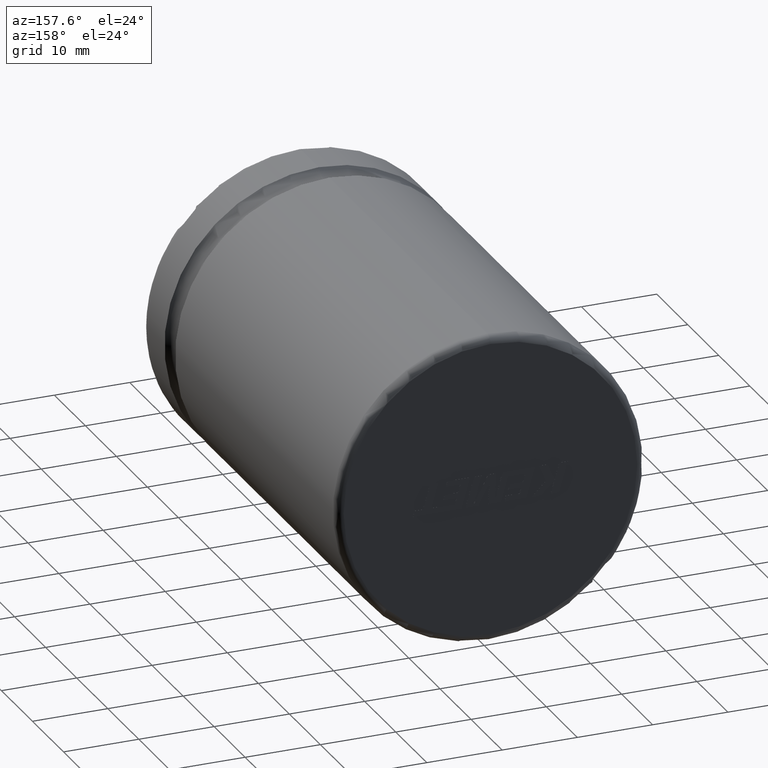
[diagram: clean part render]
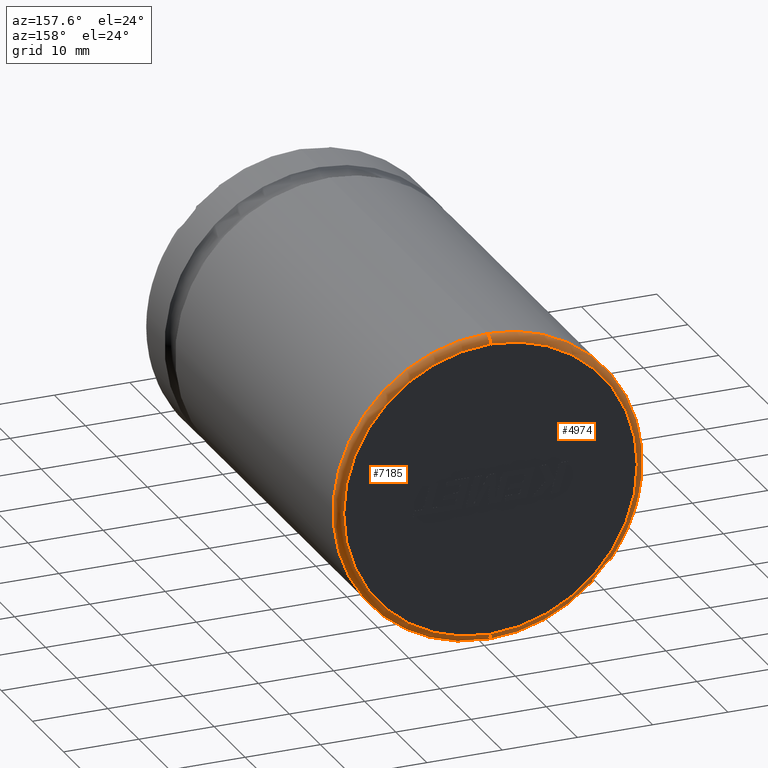
[diagram: same view with one multi-face feature highlighted, each face labeled with its STEP entity id]
A machine part, auxiliary view. The highlighted faces form ONE feature: a constant-radius fillet chain: 2 tangent blend faces with common blend radius 1 mm. The faces share edges in the B-rep.
Their STEP definitions:
[1] entity #7185 (Torus):
#247 = TOROIDAL_SURFACE ( 'NONE', #10399, 19.50000000000000000, 1.000000000000000000 ) ;
#1538 = DIRECTION ( 'NONE',  ( 0.0000000000000000000, 1.000000000000000000, 0.0000000000000000000 ) ) ;
#1597 = EDGE_CURVE ( 'NONE', #4357, #1992, #13575, .T. ) ;
#1992 = VERTEX_POINT ( 'NONE', #5085 ) ;
#2204 = VERTEX_POINT ( 'NONE', #13724 ) ;
#2429 = CARTESIAN_POINT ( 'NONE',  ( 0.0000000000000000000, 61.00000000000000000, 19.50000000000000000 ) ) ;
#2541 = DIRECTION ( 'NONE',  ( 1.224646799147353500E-016, 0.0000000000000000000, -1.000000000000000000 ) ) ;
#2787 = AXIS2_PLACEMENT_3D ( 'NONE', #5289, #10822, #11926 ) ;
#2879 = CARTESIAN_POINT ( 'NONE',  ( 2.449293598294706500E-015, 62.00000000000000000, -19.50000000000000000 ) ) ;
#3185 = ORIENTED_EDGE ( 'NONE', *, *, #8455, .F. ) ;
#3521 = DIRECTION ( 'NONE',  ( 0.0000000000000000000, 0.0000000000000000000, 1.000000000000000000 ) ) ;
#3581 = DIRECTION ( 'NONE',  ( 0.0000000000000000000, 0.0000000000000000000, 1.000000000000000000 ) ) ;
#4288 = DIRECTION ( 'NONE',  ( 0.0000000000000000000, 0.0000000000000000000, 1.000000000000000000 ) ) ;
#4357 = VERTEX_POINT ( 'NONE', #4874 ) ;
#4546 = AXIS2_PLACEMENT_3D ( 'NONE', #2429, #4553, #3521 ) ;
#4553 = DIRECTION ( 'NONE',  ( -1.000000000000000000, 0.0000000000000000000, 0.0000000000000000000 ) ) ;
#4874 = CARTESIAN_POINT ( 'NONE',  ( 0.0000000000000000000, 61.00000000000000000, -20.50000000000000000 ) ) ;
#5056 = VERTEX_POINT ( 'NONE', #2879 ) ;
#5085 = CARTESIAN_POINT ( 'NONE',  ( 2.510525938252074500E-015, 61.00000000000000000, 20.50000000000000000 ) ) ;
#5289 = CARTESIAN_POINT ( 'NONE',  ( 0.0000000000000000000, 61.00000000000000000, 0.0000000000000000000 ) ) ;
#5314 = ORIENTED_EDGE ( 'NONE', *, *, #12846, .F. ) ;
#5315 = AXIS2_PLACEMENT_3D ( 'NONE', #10138, #1538, #3581 ) ;
#6565 = CIRCLE ( 'NONE', #4546, 1.000000000000000900 ) ;
#7185 = ADVANCED_FACE ( 'NONE', ( #12761 ), #247, .T. ) ;
#7407 = EDGE_CURVE ( 'NONE', #4357, #5056, #11973, .T. ) ;
#7612 = ORIENTED_EDGE ( 'NONE', *, *, #7407, .T. ) ;
#7753 = AXIS2_PLACEMENT_3D ( 'NONE', #11257, #9149, #2541 ) ;
#7871 = CIRCLE ( 'NONE', #5315, 19.50000000000000000 ) ;
#8455 = EDGE_CURVE ( 'NONE', #1992, #2204, #6565, .T. ) ;
#8633 = DIRECTION ( 'NONE',  ( 0.0000000000000000000, 1.000000000000000000, 0.0000000000000000000 ) ) ;
#9149 = DIRECTION ( 'NONE',  ( 1.000000000000000000, -0.0000000000000000000, 1.224646799147353200E-016 ) ) ;
#9607 = ORIENTED_EDGE ( 'NONE', *, *, #1597, .F. ) ;
#10138 = CARTESIAN_POINT ( 'NONE',  ( 0.0000000000000000000, 62.00000000000000000, 0.0000000000000000000 ) ) ;
#10399 = AXIS2_PLACEMENT_3D ( 'NONE', #11826, #8633, #4288 ) ;
#10822 = DIRECTION ( 'NONE',  ( -0.0000000000000000000, -1.000000000000000000, -0.0000000000000000000 ) ) ;
#11257 = CARTESIAN_POINT ( 'NONE',  ( 2.388061258337338900E-015, 61.00000000000000000, -19.50000000000000000 ) ) ;
#11826 = CARTESIAN_POINT ( 'NONE',  ( 0.0000000000000000000, 61.00000000000000000, 0.0000000000000000000 ) ) ;
#11926 = DIRECTION ( 'NONE',  ( 0.0000000000000000000, 0.0000000000000000000, 1.000000000000000000 ) ) ;
#11973 = CIRCLE ( 'NONE', #7753, 1.000000000000000900 ) ;
#11979 = EDGE_LOOP ( 'NONE', ( #9607, #7612, #5314, #3185 ) ) ;
#12761 = FACE_OUTER_BOUND ( 'NONE', #11979, .T. ) ;
#12846 = EDGE_CURVE ( 'NONE', #2204, #5056, #7871, .T. ) ;
#13575 = CIRCLE ( 'NONE', #2787, 20.50000000000000000 ) ;
#13724 = CARTESIAN_POINT ( 'NONE',  ( 0.0000000000000000000, 62.00000000000000000, 19.50000000000000000 ) ) ;
[2] entity #4974 (Torus):
#79 = EDGE_LOOP ( 'NONE', ( #6897, #967, #10096, #1532 ) ) ;
#967 = ORIENTED_EDGE ( 'NONE', *, *, #8972, .F. ) ;
#1532 = ORIENTED_EDGE ( 'NONE', *, *, #3851, .F. ) ;
#1912 = DIRECTION ( 'NONE',  ( 0.0000000000000000000, 1.000000000000000000, 0.0000000000000000000 ) ) ;
#1992 = VERTEX_POINT ( 'NONE', #5085 ) ;
#2204 = VERTEX_POINT ( 'NONE', #13724 ) ;
#2429 = CARTESIAN_POINT ( 'NONE',  ( 0.0000000000000000000, 61.00000000000000000, 19.50000000000000000 ) ) ;
#2541 = DIRECTION ( 'NONE',  ( 1.224646799147353500E-016, 0.0000000000000000000, -1.000000000000000000 ) ) ;
#2879 = CARTESIAN_POINT ( 'NONE',  ( 2.449293598294706500E-015, 62.00000000000000000, -19.50000000000000000 ) ) ;
#3521 = DIRECTION ( 'NONE',  ( 0.0000000000000000000, 0.0000000000000000000, 1.000000000000000000 ) ) ;
#3851 = EDGE_CURVE ( 'NONE', #5056, #2204, #6604, .T. ) ;
#4013 = DIRECTION ( 'NONE',  ( 0.0000000000000000000, 0.0000000000000000000, 1.000000000000000000 ) ) ;
#4357 = VERTEX_POINT ( 'NONE', #4874 ) ;
#4466 = FACE_OUTER_BOUND ( 'NONE', #79, .T. ) ;
#4546 = AXIS2_PLACEMENT_3D ( 'NONE', #2429, #4553, #3521 ) ;
#4553 = DIRECTION ( 'NONE',  ( -1.000000000000000000, 0.0000000000000000000, 0.0000000000000000000 ) ) ;
#4589 = DIRECTION ( 'NONE',  ( -0.0000000000000000000, -1.000000000000000000, -0.0000000000000000000 ) ) ;
#4874 = CARTESIAN_POINT ( 'NONE',  ( 0.0000000000000000000, 61.00000000000000000, -20.50000000000000000 ) ) ;
#4974 = ADVANCED_FACE ( 'NONE', ( #4466 ), #6527, .T. ) ;
#5056 = VERTEX_POINT ( 'NONE', #2879 ) ;
#5085 = CARTESIAN_POINT ( 'NONE',  ( 2.510525938252074500E-015, 61.00000000000000000, 20.50000000000000000 ) ) ;
#5197 = AXIS2_PLACEMENT_3D ( 'NONE', #8344, #1912, #10622 ) ;
#5478 = AXIS2_PLACEMENT_3D ( 'NONE', #8194, #10574, #4013 ) ;
#6527 = TOROIDAL_SURFACE ( 'NONE', #5478, 19.50000000000000000, 1.000000000000000000 ) ;
#6565 = CIRCLE ( 'NONE', #4546, 1.000000000000000900 ) ;
#6604 = CIRCLE ( 'NONE', #5197, 19.50000000000000000 ) ;
#6749 = CARTESIAN_POINT ( 'NONE',  ( 0.0000000000000000000, 61.00000000000000000, 0.0000000000000000000 ) ) ;
#6897 = ORIENTED_EDGE ( 'NONE', *, *, #7407, .F. ) ;
#6921 = DIRECTION ( 'NONE',  ( 0.0000000000000000000, 0.0000000000000000000, 1.000000000000000000 ) ) ;
#7407 = EDGE_CURVE ( 'NONE', #4357, #5056, #11973, .T. ) ;
#7753 = AXIS2_PLACEMENT_3D ( 'NONE', #11257, #9149, #2541 ) ;
#8194 = CARTESIAN_POINT ( 'NONE',  ( 0.0000000000000000000, 61.00000000000000000, 0.0000000000000000000 ) ) ;
#8344 = CARTESIAN_POINT ( 'NONE',  ( 0.0000000000000000000, 62.00000000000000000, 0.0000000000000000000 ) ) ;
#8455 = EDGE_CURVE ( 'NONE', #1992, #2204, #6565, .T. ) ;
#8972 = EDGE_CURVE ( 'NONE', #1992, #4357, #12411, .T. ) ;
#9149 = DIRECTION ( 'NONE',  ( 1.000000000000000000, -0.0000000000000000000, 1.224646799147353200E-016 ) ) ;
#10096 = ORIENTED_EDGE ( 'NONE', *, *, #8455, .T. ) ;
#10574 = DIRECTION ( 'NONE',  ( 0.0000000000000000000, 1.000000000000000000, 0.0000000000000000000 ) ) ;
#10622 = DIRECTION ( 'NONE',  ( 0.0000000000000000000, 0.0000000000000000000, 1.000000000000000000 ) ) ;
#11257 = CARTESIAN_POINT ( 'NONE',  ( 2.388061258337338900E-015, 61.00000000000000000, -19.50000000000000000 ) ) ;
#11973 = CIRCLE ( 'NONE', #7753, 1.000000000000000900 ) ;
#12367 = AXIS2_PLACEMENT_3D ( 'NONE', #6749, #4589, #6921 ) ;
#12411 = CIRCLE ( 'NONE', #12367, 20.50000000000000000 ) ;
#13724 = CARTESIAN_POINT ( 'NONE',  ( 0.0000000000000000000, 62.00000000000000000, 19.50000000000000000 ) ) ;